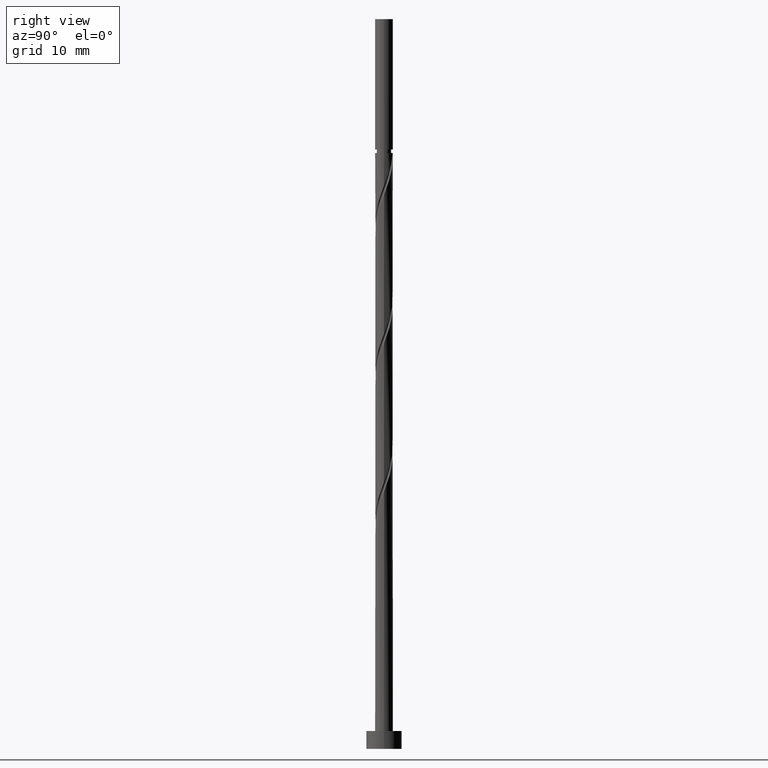
[diagram: clean part render]
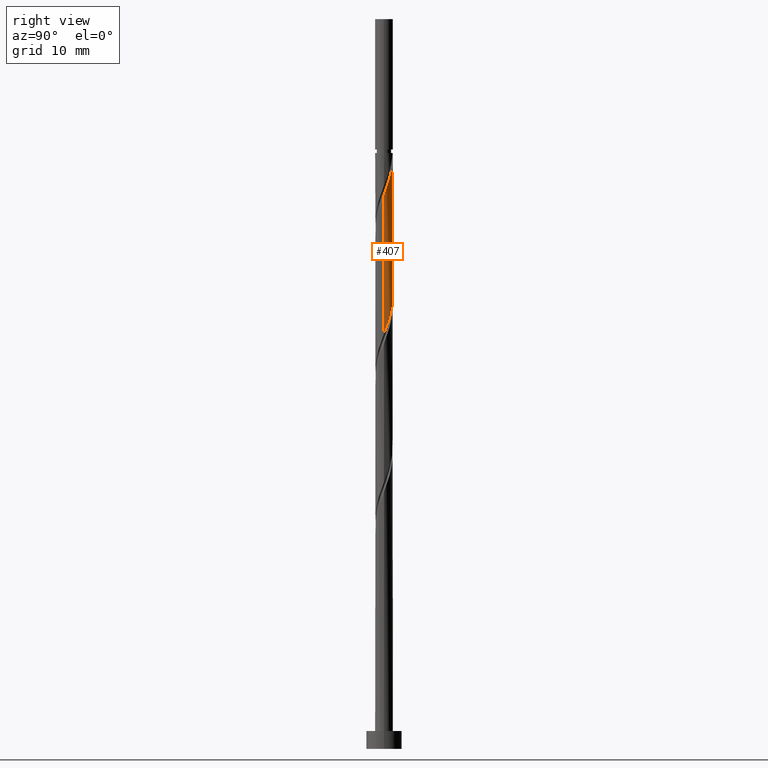
[diagram: same view with one face highlighted and labeled with its STEP entity id]
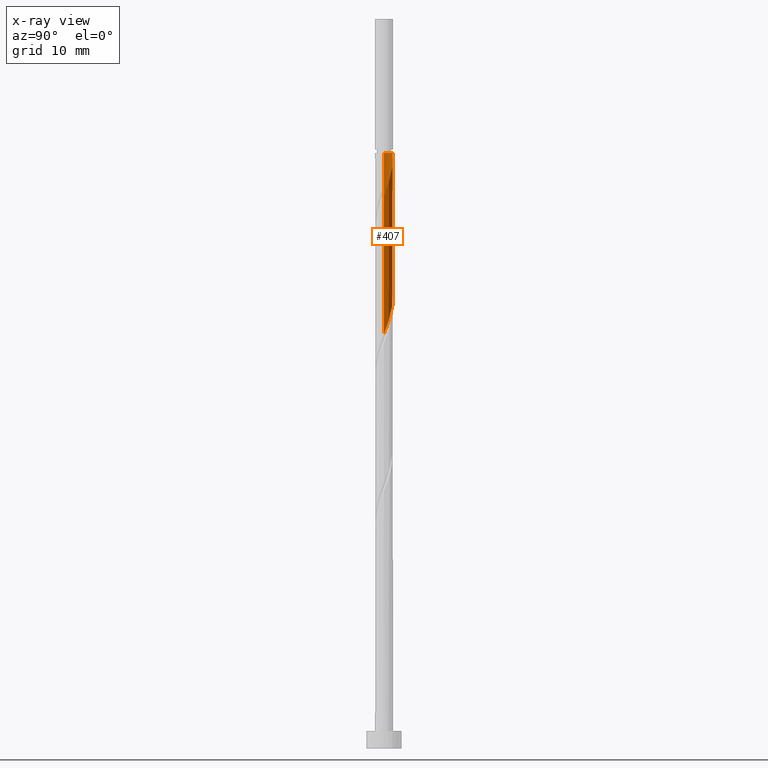
[diagram: x-ray of the same camera — body ghosted, the highlighted face saturated]
A machine part, right view. The second image highlights one B-rep face of the part: STEP entity #407.
The next image is the same camera in x-ray: the body ghosted, the highlighted face saturated — about 0% of this face is hidden behind the body in this view.
In plain terms, the highlighted cylindrical surface (edge-blend (fillet) strip) has radius 1 mm, axis along (-0, -0, -1).
Its self-contained STEP definition (entity closure, byte-faithful):
#25 = CARTESIAN_POINT ( 'NONE',  ( -1.000000000000001776, 9.029372812856465502E-13, 54.98489208206600409 ) ) ;
#42 = CIRCLE ( 'NONE', #1437, 1.000000000000003997 ) ;
#62 = CARTESIAN_POINT ( 'NONE',  ( 0.8659940141538808867, 0.5302316206861056314, 63.71329645300558298 ) ) ;
#96 = CARTESIAN_POINT ( 'NONE',  ( 0.8921910604809030199, 0.4848570054394682471, 47.97255571226484250 ) ) ;
#103 = CARTESIAN_POINT ( 'NONE',  ( -0.4774909380590706687, 0.8786366735297770347, 52.13922237893151390 ) ) ;
#109 = CARTESIAN_POINT ( 'NONE',  ( 0.9482036394194113260, 0.3176631206038655342, 47.50959274930187348 ) ) ;
#138 = CARTESIAN_POINT ( 'NONE',  ( -1.000000000000000000, 0.000000000000000000, 82.00000000000000000 ) ) ;
#148 = VERTEX_POINT ( 'NONE', #1376 ) ;
#159 = CARTESIAN_POINT ( 'NONE',  ( 0.9996671490029762630, 0.02579905432887138680, 62.32440756411669724 ) ) ;
#173 = ORIENTED_EDGE ( 'NONE', *, *, #1207, .T. ) ;
#243 = CARTESIAN_POINT ( 'NONE',  ( 0.1481832699744076165, 0.9889599175394798714, 66.02811126782039253 ) ) ;
#269 = EDGE_LOOP ( 'NONE', ( #1326, #1292, #860, #727, #173 ) ) ;
#279 = LINE ( 'NONE', #138, #999 ) ;
#286 = DIRECTION ( 'NONE',  ( -0.000000000000000000, -0.000000000000000000, -1.000000000000000000 ) ) ;
#292 = EDGE_CURVE ( 'NONE', #591, #720, #279, .T. ) ;
#327 = CARTESIAN_POINT ( 'NONE',  ( 0.5221762109439063160, 0.8528376192009050616, 49.36144460115372823 ) ) ;
#338 = CARTESIAN_POINT ( 'NONE',  ( -0.1481832699744068949, 0.9889599175394803154, 51.21329645300557587 ) ) ;
#357 = DIRECTION ( 'NONE',  ( -0.000000000000000000, -0.000000000000000000, -1.000000000000000000 ) ) ;
#393 = CARTESIAN_POINT ( 'NONE',  ( 1.000000000000001776, 7.096009109774469470E-16, 46.65155874873507003 ) ) ;
#407 = ADVANCED_FACE ( 'NONE', ( #1451 ), #875, .T. ) ;
#429 = CARTESIAN_POINT ( 'NONE',  ( -0.9951180796480328938, 0.2020673444260054352, 54.45403719374631635 ) ) ;
#449 = LINE ( 'NONE', #1270, #1178 ) ;
#453 = CARTESIAN_POINT ( 'NONE',  ( 0.02619704632702208116, 1.015088626125574711, 50.75033349004260685 ) ) ;
#560 = CARTESIAN_POINT ( 'NONE',  ( 1.000000000000001332, 0.1630543718204597592, 47.08147826110067768 ) ) ;
#591 = VERTEX_POINT ( 'NONE', #1256 ) ;
#631 = CARTESIAN_POINT ( 'NONE',  ( 0.9305560469009569458, 0.3661494825560553945, 63.25033349004260685 ) ) ;
#712 = EDGE_CURVE ( 'NONE', #1184, #1412, #449, .T. ) ;
#720 = VERTEX_POINT ( 'NONE', #25 ) ;
#727 = ORIENTED_EDGE ( 'NONE', *, *, #292, .F. ) ;
#750 = AXIS2_PLACEMENT_3D ( 'NONE', #1341, #1117, #1225 ) ;
#787 = DIRECTION ( 'NONE',  ( -1.000000000000000000, 0.000000000000000000, 0.000000000000000000 ) ) ;
#857 = CARTESIAN_POINT ( 'NONE',  ( 1.000000000000001554, 9.710328255480745813E-17, 62.25651563875759109 ) ) ;
#860 = ORIENTED_EDGE ( 'NONE', *, *, #1043, .F. ) ;
#875 = CYLINDRICAL_SURFACE ( 'NONE', #750, 1.000000000000000000 ) ;
#894 = CARTESIAN_POINT ( 'NONE',  ( -0.8659940141538805536, 0.5302316206861061865, 53.52811126782036411 ) ) ;
#907 = DIRECTION ( 'NONE',  ( -0.000000000000000000, -0.000000000000000000, -1.000000000000000000 ) ) ;
#924 = CARTESIAN_POINT ( 'NONE',  ( 0.4774909380590708907, 0.8786366735297767017, 65.10218534189448292 ) ) ;
#943 = CARTESIAN_POINT ( 'NONE',  ( 1.000000000000001554, 9.710328255480745813E-17, 62.25651563875758399 ) ) ;
#999 = VECTOR ( 'NONE', #286, 1000.000000000000000 ) ;
#1003 = CARTESIAN_POINT ( 'NONE',  ( 0.6725544933721975260, 0.7607638645273798739, 48.89848163819074500 ) ) ;
#1013 = CARTESIAN_POINT ( 'NONE',  ( 0.3717979285156144398, 0.9449113738744308044, 49.82440756411668303 ) ) ;
#1021 = CARTESIAN_POINT ( 'NONE',  ( -0.7492061519980932616, 0.6623368793961373902, 53.06514830485743772 ) ) ;
#1028 = CARTESIAN_POINT ( 'NONE',  ( 0.3225635862758363670, 0.9628312089533850315, 65.56514830485743062 ) ) ;
#1030 = CARTESIAN_POINT ( 'NONE',  ( -0.3225635862758358119, 0.9628312089533854756, 51.67625941596852357 ) ) ;
#1036 = CARTESIAN_POINT ( 'NONE',  ( 0.7823727769265501619, 0.6228104349834240328, 48.43551867522781151 ) ) ;
#1043 = EDGE_CURVE ( 'NONE', #720, #1412, #1445, .T. ) ;
#1105 = CARTESIAN_POINT ( 'NONE',  ( -0.1989974874213181200, 0.9800000000000032019, 66.95403719374631635 ) ) ;
#1117 = DIRECTION ( 'NONE',  ( -0.000000000000000000, -0.000000000000000000, -1.000000000000000000 ) ) ;
#1135 = CARTESIAN_POINT ( 'NONE',  ( 0.000000000000000000, 0.000000000000000000, 66.95403719374631635 ) ) ;
#1137 = CARTESIAN_POINT ( 'NONE',  ( -1.000000000000001776, 9.029372812856464492E-13, 54.98489208206600409 ) ) ;
#1147 = CARTESIAN_POINT ( 'NONE',  ( -0.9996671490029767071, 0.02579905432887138680, 54.91700015670928536 ) ) ;
#1178 = VECTOR ( 'NONE', #357, 1000.000000000000000 ) ;
#1184 = VERTEX_POINT ( 'NONE', #943 ) ;
#1188 = EDGE_CURVE ( 'NONE', #1184, #148, #1222, .T. ) ;
#1207 = EDGE_CURVE ( 'NONE', #591, #148, #42, .T. ) ;
#1209 = CARTESIAN_POINT ( 'NONE',  ( 1.000000000000001332, 0.01290167433202013547, 62.29053301268993437 ) ) ;
#1215 = CARTESIAN_POINT ( 'NONE',  ( -0.02619704632702204994, 1.015088626125574267, 66.49107423078336865 ) ) ;
#1222 =( BOUNDED_CURVE ( )  B_SPLINE_CURVE ( 2, ( #857, #1209, #159, #1311, #631, #62, #1330, #1228, #924, #1028, #243, #1215, #1105 ),
 .UNSPECIFIED., .F., .T. ) 
 B_SPLINE_CURVE_WITH_KNOTS ( ( 3, 2, 2, 2, 2, 2, 3 ),
 ( 0.6795248053855295067, 0.6805555555555555802, 0.6944444444444444198, 0.7083333333333332593, 0.7222222222222222099, 0.7361111111111111605, 0.7500000000000000000 ),
 .UNSPECIFIED. ) 
 CURVE ( )  GEOMETRIC_REPRESENTATION_ITEM ( )  RATIONAL_B_SPLINE_CURVE ( ( 0.9071930855141412398, 0.9080659294509886292, 0.9090909090909282675, 0.8952797754656627305, 0.9090909090909282675, 0.8952797754656627305, 0.9090909090909282675, 0.8952797754656627305, 0.9090909090909282675, 0.8952797754656627305, 0.9090909090909282675, 0.8952797754656627305, 0.9090909090909282675 ) ) 
 REPRESENTATION_ITEM ( '' )  );
#1225 = DIRECTION ( 'NONE',  ( -1.000000000000000000, 0.000000000000000000, 0.000000000000000000 ) ) ;
#1228 = CARTESIAN_POINT ( 'NONE',  ( 0.6324182898423054144, 0.7944421381061682608, 64.63922237893149259 ) ) ;
#1252 = CARTESIAN_POINT ( 'NONE',  ( -0.6324182898423054144, 0.7944421381061683718, 52.60218534189446871 ) ) ;
#1256 = CARTESIAN_POINT ( 'NONE',  ( -1.000000000000003997, 0.000000000000000000, 66.95403719374631635 ) ) ;
#1270 = CARTESIAN_POINT ( 'NONE',  ( 1.000000000000000000, 1.224646799147353207E-16, 82.00000000000000000 ) ) ;
#1292 = ORIENTED_EDGE ( 'NONE', *, *, #712, .T. ) ;
#1311 = CARTESIAN_POINT ( 'NONE',  ( 0.9951180796480328938, 0.2020673444260051854, 62.78737052707963784 ) ) ;
#1326 = ORIENTED_EDGE ( 'NONE', *, *, #1188, .F. ) ;
#1330 = CARTESIAN_POINT ( 'NONE',  ( 0.7492061519980929285, 0.6623368793961375012, 64.17625941596854489 ) ) ;
#1341 = CARTESIAN_POINT ( 'NONE',  ( 0.000000000000000000, 0.000000000000000000, 82.00000000000000000 ) ) ;
#1358 = CARTESIAN_POINT ( 'NONE',  ( 0.1989974874213185363, 0.9800000000000027578, 50.28737052707965915 ) ) ;
#1368 = CARTESIAN_POINT ( 'NONE',  ( -0.9999999999999900080, 0.01290167433246873670, 54.95087470813486874 ) ) ;
#1376 = CARTESIAN_POINT ( 'NONE',  ( -0.1989974874213181200, 0.9800000000000032019, 66.95403719374631635 ) ) ;
#1377 = CARTESIAN_POINT ( 'NONE',  ( 1.000000000000001776, 7.096009109774468484E-16, 46.65155874873507003 ) ) ;
#1412 = VERTEX_POINT ( 'NONE', #393 ) ;
#1437 = AXIS2_PLACEMENT_3D ( 'NONE', #1135, #907, #787 ) ;
#1445 =( BOUNDED_CURVE ( )  B_SPLINE_CURVE ( 2, ( #1137, #1368, #1147, #429, #1474, #894, #1021, #1252, #103, #1030, #338, #453, #1358, #1013, #327, #1003, #1036, #96, #109, #560, #1377 ),
 .UNSPECIFIED., .F., .T. ) 
 B_SPLINE_CURVE_WITH_KNOTS ( ( 3, 2, 2, 2, 2, 2, 2, 2, 2, 2, 3 ),
 ( 0.4295248053855653114, 0.4305555555555555802, 0.4444444444444444198, 0.4583333333333333148, 0.4722222222222222099, 0.4861111111111111049, 0.5000000000000000000, 0.5138888888888888395, 0.5277777777777777901, 0.5416666666666666297, 0.5545248053855292847 ),
 .UNSPECIFIED. ) 
 CURVE ( )  GEOMETRIC_REPRESENTATION_ITEM ( )  RATIONAL_B_SPLINE_CURVE ( ( 0.9071930855141919769, 0.9080659294510142754, 0.9090909090909183865, 0.8952797754656529605, 0.9090909090909183865, 0.8952797754656529605, 0.9090909090909183865, 0.8952797754656529605, 0.9090909090909183865, 0.8952797754656529605, 0.9090909090909183865, 0.8952797754656529605, 0.9090909090909183865, 0.8952797754656529605, 0.9090909090909183865, 0.8952797754656529605, 0.9090909090909183865, 0.8952797754656529605, 0.9090909090909183865, 0.8963047551055928208, 0.9071930855141310257 ) ) 
 REPRESENTATION_ITEM ( '' )  );
#1451 = FACE_OUTER_BOUND ( 'NONE', #269, .T. ) ;
#1474 = CARTESIAN_POINT ( 'NONE',  ( -0.9305560469009568347, 0.3661494825560558386, 53.99107423078334733 ) ) ;